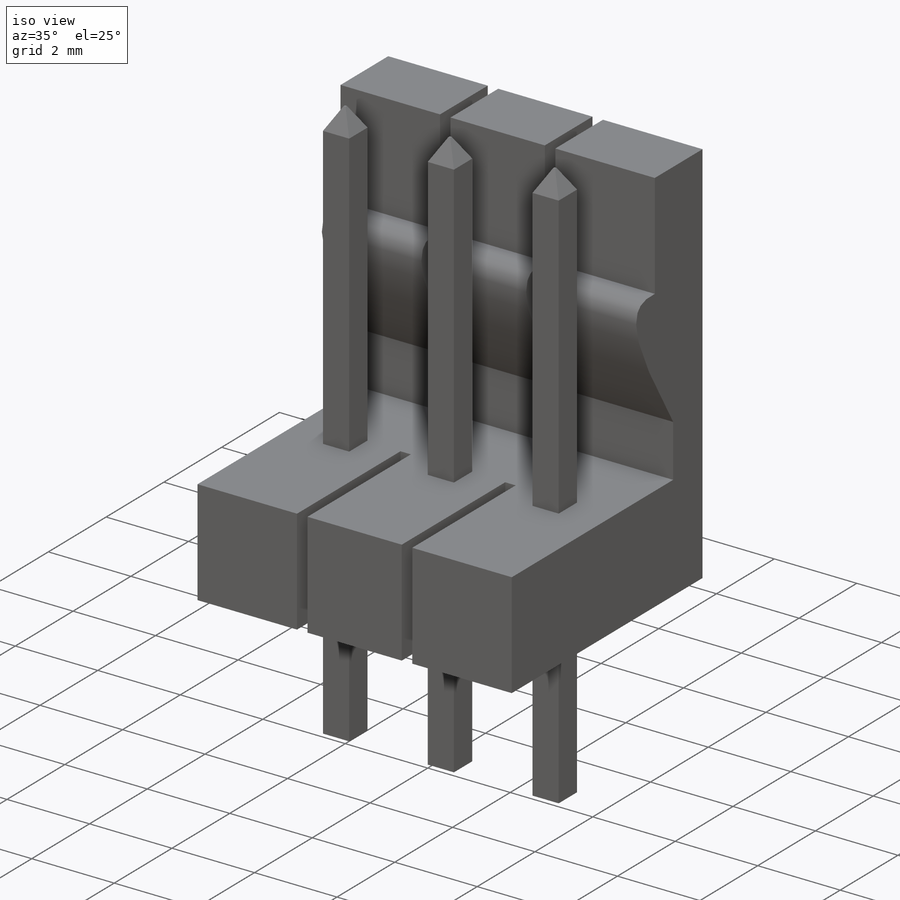
[diagram: iso view]
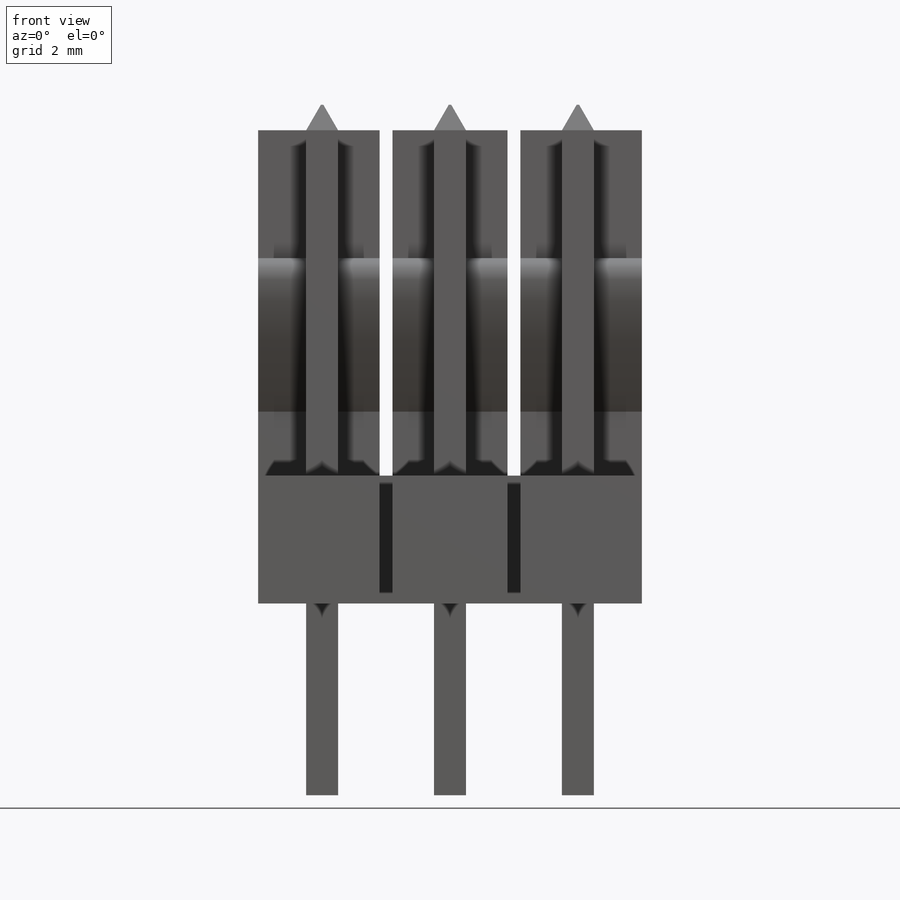
[diagram: front view]
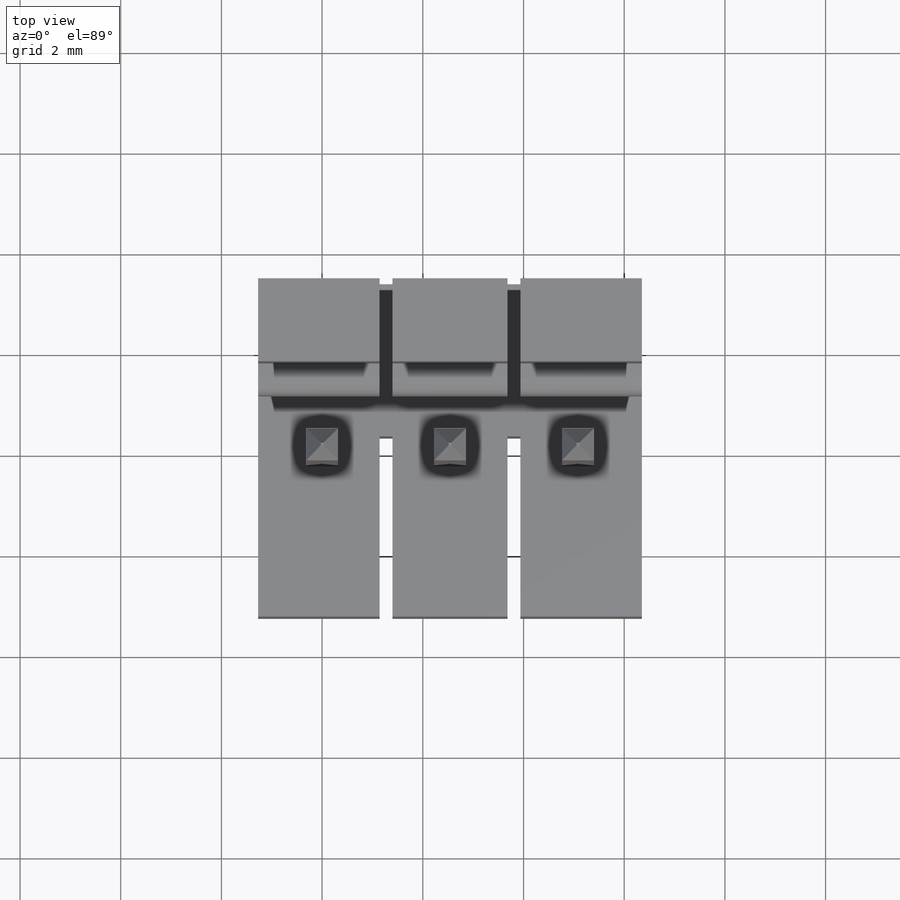
[diagram: top view]
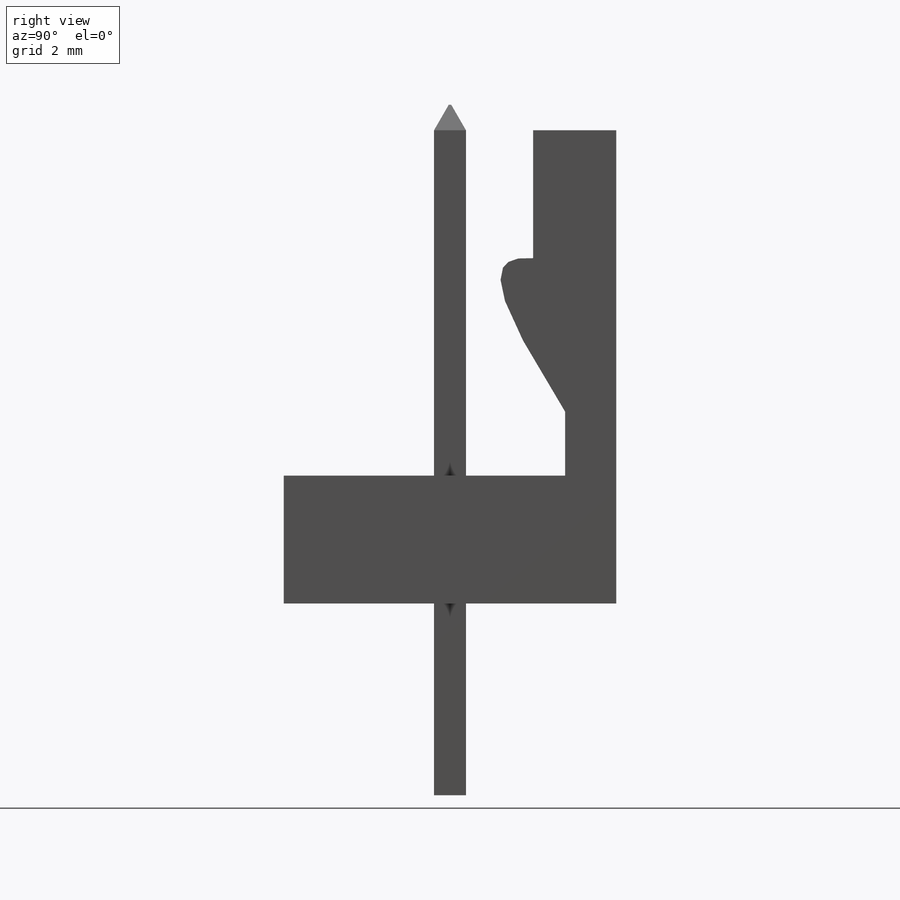
[diagram: right view]
SOLIDWORKS PART (.sldprt)
format: sldprt  version: not decoded by parser v0  size: 270,848 bytes
history: native  units: mm
features: sketch x5, extrude x2, cut_extrude x2, pattern_linear x2, material x1, plane x1, chamfer x1 (+12 scaffold rows collapsed)
feature tree (26):
  scaffold x12  (default folders/planes/origin — collapsed)
  material  "Material <not specified>"
  sketch  "Sketch3"  dims[c1.D1=9.3726mm c1.D2=1.27mm c1.D3=7.62mm c2.D1=9.398mm]
  extrude  "Base-Extrude"  Depth=3.302mm
  sketch  "Sketch4"  dims[D1=1.651mm D2=2.54mm D3=2.54mm D4=1.27mm D5=1.016mm]
  cut_extrude  "Cut-Extrude1"  [1 undecoded]
  plane  "Plane1"  Offset=1.27mm
  sketch  "Sketch5"  dims[D1=3.5814mm]
  cut_extrude  "Cut-Extrude2"  Depth=0.254mm
  sketch  "Sketch6"  dims[D1=0.635mm]
  extrude  "Boss-Extrude1"  Depth=3.81mm
  chamfer  "Chamfer1"  Distance=0.508mm Angle=30deg
  pattern_linear  "LPattern2"  Count1=3 Count2=1 Spacing1=2.54mm Spacing2=50mm
  pattern_linear  "LPattern3"  Count1=2 Count2=1 Spacing1=2.54mm Spacing2=50mm
  sketch  "Component_Outline"
decode coverage: 10 of 12 modeling features carry decoded parameters
note: 1 parameter value undecoded
note: suppression state not decoded; provenance and decode notes live in map.json
